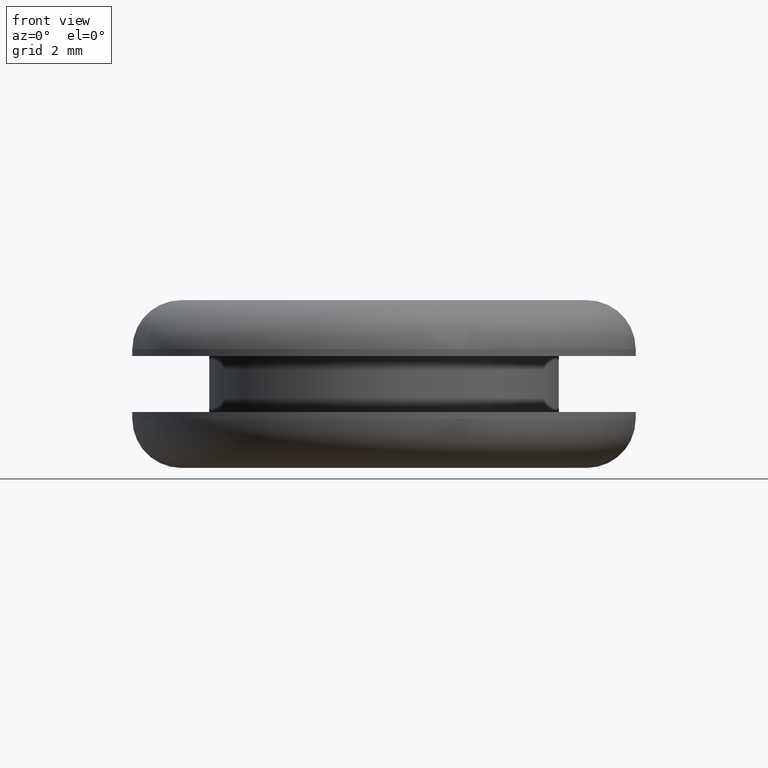
[diagram: clean part render]
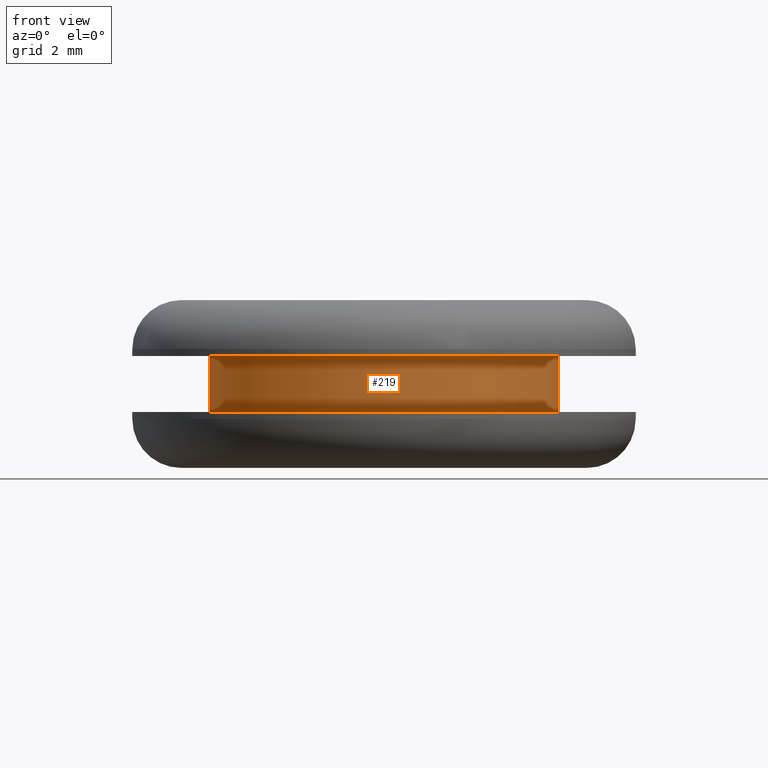
[diagram: same view with one face highlighted and labeled with its STEP entity id]
A machine part, front view. The second image highlights one B-rep face of the part: STEP entity #219.
In plain terms, the highlighted cylindrical surface (partial cylindrical patch) has radius 6.25 mm, axis along (0, 0, -1).
Its self-contained STEP definition (entity closure, byte-faithful):
#6 = VERTEX_POINT ( 'NONE', #153 ) ;
#8 = CARTESIAN_POINT ( 'NONE',  ( 106.7589284890372000, 7.654042494697900200E-016, 0.0000000000000000000 ) ) ;
#11 = EDGE_CURVE ( 'NONE', #31, #21, #41, .T. ) ;
#21 = VERTEX_POINT ( 'NONE', #376 ) ;
#24 = DIRECTION ( 'NONE',  ( 0.0000000000000000000, 0.0000000000000000000, -1.000000000000000000 ) ) ;
#31 = VERTEX_POINT ( 'NONE', #182 ) ;
#41 = CIRCLE ( 'NONE', #394, 6.250000000022002000 ) ;
#50 = CARTESIAN_POINT ( 'NONE',  ( 94.25892848899320600, 0.0000000000000000000, 0.0000000000000000000 ) ) ;
#68 = AXIS2_PLACEMENT_3D ( 'NONE', #121, #336, #325 ) ;
#75 = EDGE_LOOP ( 'NONE', ( #377, #161, #404, #407 ) ) ;
#82 = DIRECTION ( 'NONE',  ( 0.0000000000000000000, 0.0000000000000000000, -1.000000000000000000 ) ) ;
#90 = EDGE_CURVE ( 'NONE', #6, #209, #145, .T. ) ;
#95 = CARTESIAN_POINT ( 'NONE',  ( 100.5089284890152000, 0.0000000000000000000, 0.0000000000000000000 ) ) ;
#121 = CARTESIAN_POINT ( 'NONE',  ( 100.5089284890152000, 0.0000000000000000000, 133.6288681965059800 ) ) ;
#145 = CIRCLE ( 'NONE', #68, 6.250000000022002000 ) ;
#153 = CARTESIAN_POINT ( 'NONE',  ( 106.7589284890372000, 7.654042494697898200E-016, 133.6288681965059800 ) ) ;
#161 = ORIENTED_EDGE ( 'NONE', *, *, #90, .T. ) ;
#176 = CYLINDRICAL_SURFACE ( 'NONE', #251, 6.250000000022002000 ) ;
#181 = CARTESIAN_POINT ( 'NONE',  ( 94.25892848899320600, 0.0000000000000000000, 133.6288681965059800 ) ) ;
#182 = CARTESIAN_POINT ( 'NONE',  ( 106.7589284890372000, 7.654042494697898200E-016, 131.6288681965059800 ) ) ;
#195 = EDGE_CURVE ( 'NONE', #6, #31, #199, .T. ) ;
#199 = LINE ( 'NONE', #8, #316 ) ;
#209 = VERTEX_POINT ( 'NONE', #181 ) ;
#219 = ADVANCED_FACE ( 'NONE', ( #458 ), #176, .T. ) ;
#226 = VECTOR ( 'NONE', #381, 1000.000000000000000 ) ;
#242 = EDGE_CURVE ( 'NONE', #209, #21, #367, .T. ) ;
#251 = AXIS2_PLACEMENT_3D ( 'NONE', #95, #421, #459 ) ;
#316 = VECTOR ( 'NONE', #82, 1000.000000000000000 ) ;
#325 = DIRECTION ( 'NONE',  ( -1.000000000000000000, 0.0000000000000000000, 0.0000000000000000000 ) ) ;
#336 = DIRECTION ( 'NONE',  ( 0.0000000000000000000, 0.0000000000000000000, -1.000000000000000000 ) ) ;
#362 = DIRECTION ( 'NONE',  ( -1.000000000000000000, 0.0000000000000000000, 0.0000000000000000000 ) ) ;
#367 = LINE ( 'NONE', #50, #226 ) ;
#376 = CARTESIAN_POINT ( 'NONE',  ( 94.25892848899320600, 0.0000000000000000000, 131.6288681965059800 ) ) ;
#377 = ORIENTED_EDGE ( 'NONE', *, *, #195, .F. ) ;
#381 = DIRECTION ( 'NONE',  ( 0.0000000000000000000, 0.0000000000000000000, -1.000000000000000000 ) ) ;
#394 = AXIS2_PLACEMENT_3D ( 'NONE', #470, #24, #362 ) ;
#404 = ORIENTED_EDGE ( 'NONE', *, *, #242, .T. ) ;
#407 = ORIENTED_EDGE ( 'NONE', *, *, #11, .F. ) ;
#421 = DIRECTION ( 'NONE',  ( 0.0000000000000000000, 0.0000000000000000000, -1.000000000000000000 ) ) ;
#458 = FACE_OUTER_BOUND ( 'NONE', #75, .T. ) ;
#459 = DIRECTION ( 'NONE',  ( -1.000000000000000000, 0.0000000000000000000, 0.0000000000000000000 ) ) ;
#470 = CARTESIAN_POINT ( 'NONE',  ( 100.5089284890152000, 0.0000000000000000000, 131.6288681965059800 ) ) ;